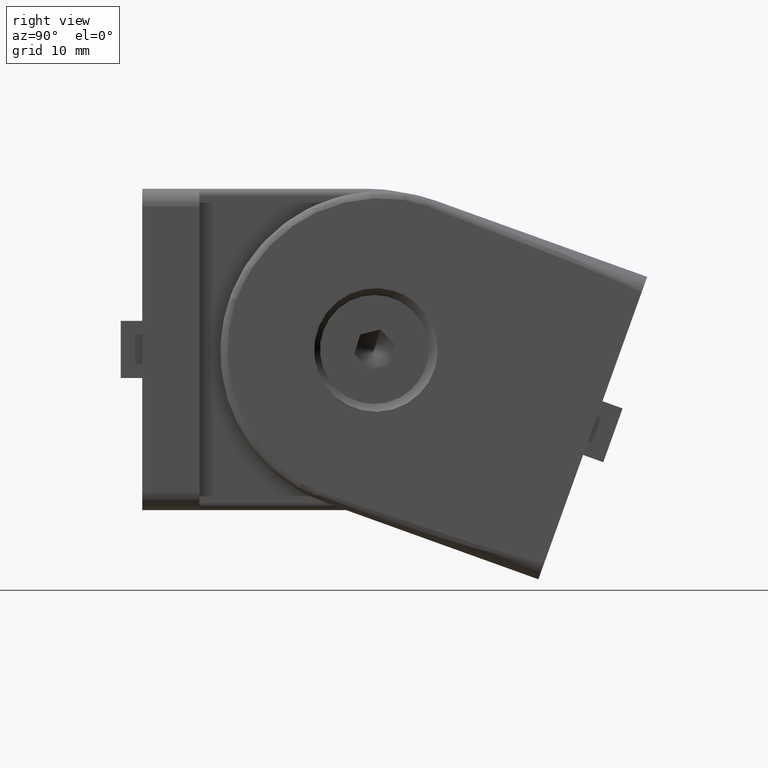
[diagram: clean part render]
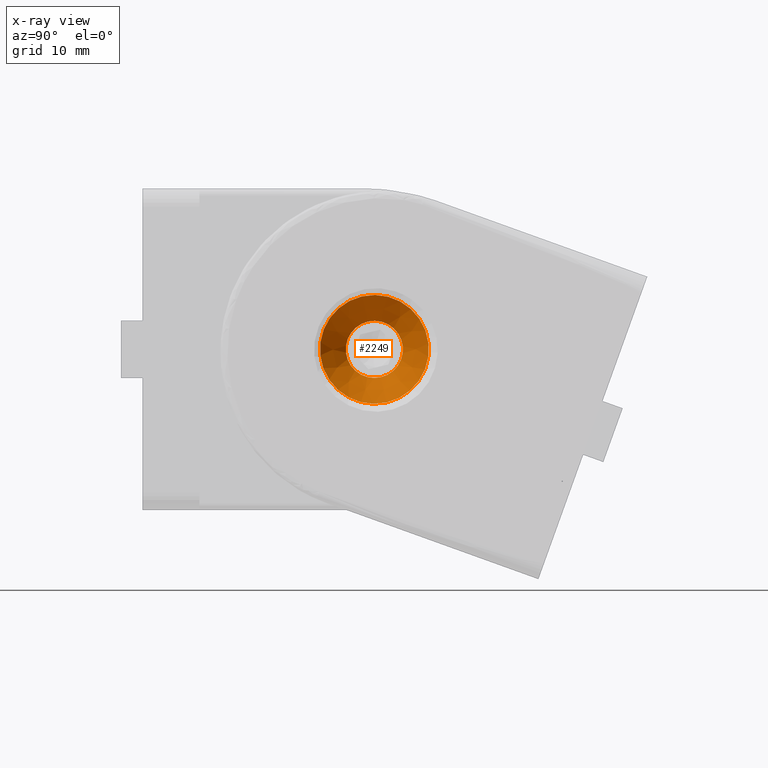
[diagram: x-ray — body ghosted, one internal face saturated and labeled with its STEP entity id]
A machine part, right view, then the same camera in x-ray: the body is ghosted and one INTERNAL B-rep face — a face not visible from any outside direction — is saturated and labeled: STEP entity #2249.
In plain terms, the highlighted conical surface has half-angle 45 deg.
Its self-contained STEP definition (entity closure, byte-faithful):
#494=CONICAL_SURFACE('',#2461,5.81,45.);
#514=FACE_BOUND('',#837,.T.);
#693=FACE_OUTER_BOUND('',#836,.T.);
#836=EDGE_LOOP('',(#2110));
#837=EDGE_LOOP('',(#2111));
#933=CIRCLE('',#2448,4.);
#935=CIRCLE('',#2460,7.62000000000001);
#1149=VERTEX_POINT('',#4613);
#1163=VERTEX_POINT('',#4669);
#1459=EDGE_CURVE('',#1149,#1149,#933,.T.);
#1479=EDGE_CURVE('',#1163,#1163,#935,.T.);
#2110=ORIENTED_EDGE('',*,*,#1459,.F.);
#2111=ORIENTED_EDGE('',*,*,#1479,.T.);
#2249=ADVANCED_FACE('',(#693,#514),#494,.T.);
#2448=AXIS2_PLACEMENT_3D('',#4614,#3037,#3038);
#2460=AXIS2_PLACEMENT_3D('',#4670,#3073,#3074);
#2461=AXIS2_PLACEMENT_3D('',#4671,#3075,#3076);
#3037=DIRECTION('center_axis',(1.,-4.26737001499744E-32,0.));
#3038=DIRECTION('ref_axis',(0.,1.,0.));
#3073=DIRECTION('center_axis',(1.,-4.26737001499744E-32,0.));
#3074=DIRECTION('ref_axis',(0.,1.,0.));
#3075=DIRECTION('center_axis',(-1.,4.26737001499744E-32,0.));
#3076=DIRECTION('ref_axis',(0.,1.,0.));
#4613=CARTESIAN_POINT('',(4.95999999999999,4.,0.));
#4614=CARTESIAN_POINT('Origin',(4.95999999999999,4.55186134933098E-33,0.));
#4669=CARTESIAN_POINT('',(1.33999999999998,7.62000000000001,0.));
#4670=CARTESIAN_POINT('Origin',(1.33999999999998,1.59030655892239E-31,0.));
#4671=CARTESIAN_POINT('Origin',(3.14999999999999,8.17912586207851E-32,0.));